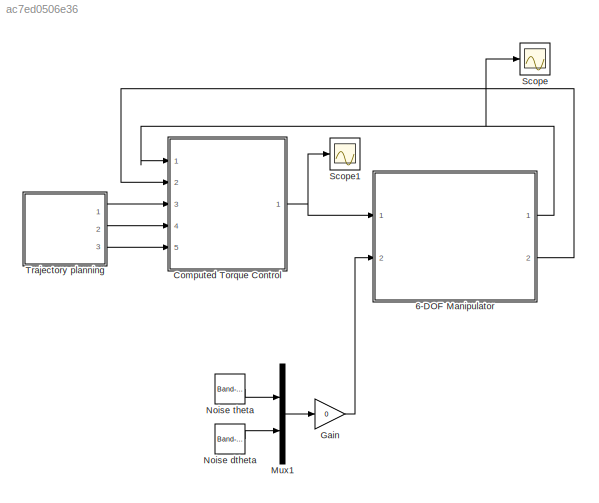
MODEL slx_ac7ed0506e36
KIND model
CONFIG AbsTol = auto
CONFIG EnableMultiTasking = off
CONFIG FixedStep = 0.01
CONFIG MaxStep = auto
CONFIG MinStep = auto
CONFIG RelTol = 1e-3
CONFIG SampleTimeConstraint = Unconstrained
CONFIG SolverName = FixedStepAuto
CONFIG StartTime = 0.0
CONFIG StopTime = 30
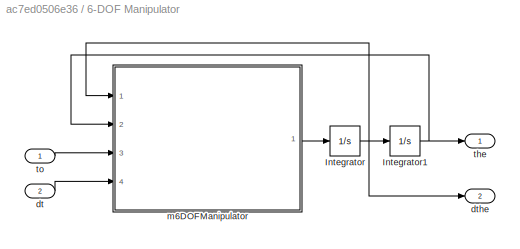
BLOCK [SubSystem] 6-DOF Manipulator
  Ports = [2, 2]
  RequestExecContextInheritance = off
BLOCK [Integrator] 6-DOF Manipulator/Integrator
  InitialCondition = [0;0;0;0;0;0]
  Ports = [1, 1]
BLOCK [Integrator] 6-DOF Manipulator/Integrator1
  InitialCondition = [0.01;0.01;0.01;0.01;0.01;0.01]
  Ports = [1, 1]
BLOCK [Inport] 6-DOF Manipulator/dt
  Port = 2
BLOCK [Outport] 6-DOF Manipulator/dthe
  Port = 2
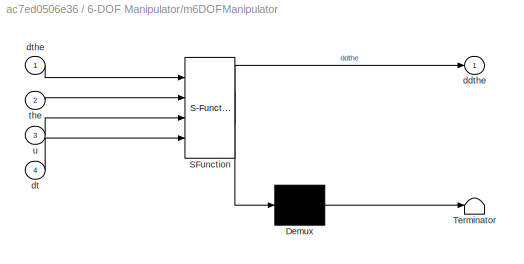
BLOCK [SubSystem] 6-DOF Manipulator/m6DOFManipulator
  ErrorFcn = Stateflow.Translate.translate
  PermitHierarchicalResolution = ExplicitOnly
  Ports = [4, 1]
  RequestExecContextInheritance = off
  SFBlockType = MATLAB Function
  TreatAsAtomicUnit = on
BLOCK [Demux] 6-DOF Manipulator/m6DOFManipulator/ Demux 
  Outputs = 1
  Ports = [1, 1]
BLOCK [S-Function] 6-DOF Manipulator/m6DOFManipulator/ SFunction 
  EnableBusSupport = on
  FunctionName = sf_sfun
  PortCounts = [4 2]
  Ports = [4, 2]
  SFcnIsStateOwnerBlock = off
  SFunctionDeploymentMode = off
  Tag = Stateflow S-Function 2
BLOCK [Terminator] 6-DOF Manipulator/m6DOFManipulator/ Terminator 
BLOCK [Outport] 6-DOF Manipulator/m6DOFManipulator/ddthe
BLOCK [Inport] 6-DOF Manipulator/m6DOFManipulator/dt
  Port = 4
BLOCK [Inport] 6-DOF Manipulator/m6DOFManipulator/dthe
BLOCK [Inport] 6-DOF Manipulator/m6DOFManipulator/the
  Port = 2
BLOCK [Inport] 6-DOF Manipulator/m6DOFManipulator/u
  Port = 3
BLOCK [Outport] 6-DOF Manipulator/the
BLOCK [Inport] 6-DOF Manipulator/to
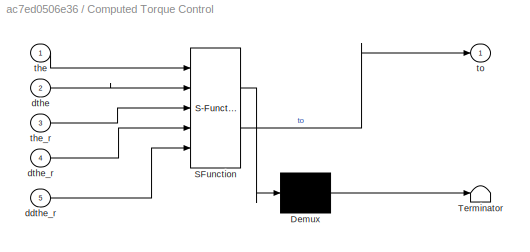
BLOCK [SubSystem] Computed Torque Control
  ErrorFcn = Stateflow.Translate.translate
  PermitHierarchicalResolution = ExplicitOnly
  Ports = [5, 1]
  RequestExecContextInheritance = off
  SFBlockType = MATLAB Function
  TreatAsAtomicUnit = on
BLOCK [Demux] Computed Torque Control/ Demux 
  Outputs = 1
  Ports = [1, 1]
BLOCK [S-Function] Computed Torque Control/ SFunction 
  EnableBusSupport = on
  FunctionName = sf_sfun
  PortCounts = [5 2]
  Ports = [5, 2]
  SFcnIsStateOwnerBlock = off
  SFunctionDeploymentMode = off
  Tag = Stateflow S-Function 1
BLOCK [Terminator] Computed Torque Control/ Terminator 
BLOCK [Inport] Computed Torque Control/ddthe_r
  Port = 5
BLOCK [Inport] Computed Torque Control/dthe
  Port = 2
BLOCK [Inport] Computed Torque Control/dthe_r
  Port = 4
BLOCK [Inport] Computed Torque Control/the
BLOCK [Inport] Computed Torque Control/the_r
  Port = 3
BLOCK [Outport] Computed Torque Control/to
BLOCK [Gain] Gain
  Gain = 0
BLOCK [Mux] Mux1
  DisplayOption = bar
  Inputs = 2
  Ports = [2, 1]
BLOCK [Reference] Noise dtheta  REF=simulink/Sources/Band-Limited
White Noise
  Ports = [0, 1]
  SourceBlock = simulink/Sources/Band-Limited\nWhite Noise
  SourceProductBaseCode = SL
  SourceType = Band-Limited White Noise.
BLOCK [Reference] Noise theta  REF=simulink/Sources/Band-Limited
White Noise
  Ports = [0, 1]
  SourceBlock = simulink/Sources/Band-Limited\nWhite Noise
  SourceProductBaseCode = SL
  SourceType = Band-Limited White Noise.
BLOCK [Scope] Scope
  Floating = off
  NumInputPorts = 1
  Ports = [1]
  ScopeSpecificationString = Simulink.scopes.TimeScopeBlockCfg('CurrentConfiguration', extmgr.ConfigurationSet(extmgr.Configuration('Core','General UI',true),extmgr.Configuration('Core','Source UI',true),extmgr.Configuration('Sources','WiredSimulink',true),extmgr.Configuration('Visuals','Time Domain',true,'SerializedDisplays',{struct('MinYLimReal','-1.35177','MaxYLimReal','1.31763','YLabelReal','','MinYLimMag','0.00000','MaxY...<+1488ch>
BLOCK [Scope] Scope1
  Floating = off
  NumInputPorts = 1
  Ports = [1]
  ScopeSpecificationString = Simulink.scopes.TimeScopeBlockCfg('CurrentConfiguration', extmgr.ConfigurationSet(extmgr.Configuration('Core','General UI',true),extmgr.Configuration('Core','Source UI',true),extmgr.Configuration('Sources','WiredSimulink',true,'DataLoggingVariableName','ScopeData1'),extmgr.Configuration('Visuals','Time Domain',true,'SerializedDisplays',{struct('MinYLimReal','-95.53191','MaxYLimReal','651.89769','Y...<+1586ch>
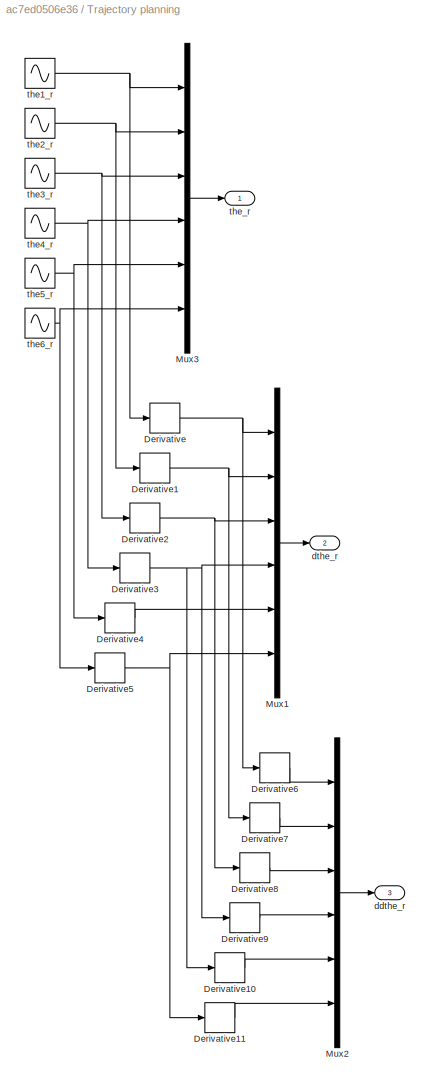
BLOCK [SubSystem] Trajectory planning
  Ports = [0, 3]
  RequestExecContextInheritance = off
BLOCK [Derivative] Trajectory planning/Derivative
BLOCK [Derivative] Trajectory planning/Derivative1
BLOCK [Derivative] Trajectory planning/Derivative10
BLOCK [Derivative] Trajectory planning/Derivative11
BLOCK [Derivative] Trajectory planning/Derivative2
BLOCK [Derivative] Trajectory planning/Derivative3
BLOCK [Derivative] Trajectory planning/Derivative4
BLOCK [Derivative] Trajectory planning/Derivative5
BLOCK [Derivative] Trajectory planning/Derivative6
BLOCK [Derivative] Trajectory planning/Derivative7
BLOCK [Derivative] Trajectory planning/Derivative8
BLOCK [Derivative] Trajectory planning/Derivative9
BLOCK [Mux] Trajectory planning/Mux1
  DisplayOption = bar
  Inputs = 6
  Ports = [6, 1]
BLOCK [Mux] Trajectory planning/Mux2
  DisplayOption = bar
  Inputs = 6
  Ports = [6, 1]
BLOCK [Mux] Trajectory planning/Mux3
  DisplayOption = bar
  Inputs = 6
  Ports = [6, 1]
BLOCK [Outport] Trajectory planning/ddthe_r
  Port = 3
  VectorParamsAs1DForOutWhenUnconnected = off
BLOCK [Outport] Trajectory planning/dthe_r
  Port = 2
  VectorParamsAs1DForOutWhenUnconnected = off
BLOCK [Sin] Trajectory planning/the1_r
  Amplitude = pi/3
  Frequency = 2*pi*0.1
  Ports = [0, 1]
  SampleTime = 0
BLOCK [Sin] Trajectory planning/the2_r
  Amplitude = pi/4
  Frequency = 2*pi*0.1
  Ports = [0, 1]
  SampleTime = 0
BLOCK [Sin] Trajectory planning/the3_r
  Amplitude = pi/6
  Frequency = 2*pi*0.1
  Ports = [0, 1]
  SampleTime = 0
BLOCK [Sin] Trajectory planning/the4_r
  Amplitude = pi/3
  Frequency = 2*pi*0.1
  Phase = pi/3
  Ports = [0, 1]
  SampleTime = 0
BLOCK [Sin] Trajectory planning/the5_r
  Amplitude = pi/4
  Frequency = 2*pi*0.1
  Phase = pi/4
  Ports = [0, 1]
  SampleTime = 0
BLOCK [Sin] Trajectory planning/the6_r
  Amplitude = pi/6
  Frequency = 2*pi*0.1
  Phase = pi/6
  Ports = [0, 1]
  SampleTime = 0
BLOCK [Outport] Trajectory planning/the_r
  VectorParamsAs1DForOutWhenUnconnected = off
NET 6-DOF Manipulator/Integrator1:1 -> 6-DOF Manipulator/m6DOFManipulator:2, 6-DOF Manipulator/the:1
NET 6-DOF Manipulator/Integrator:1 -> 6-DOF Manipulator/Integrator1:1, 6-DOF Manipulator/dthe:1, 6-DOF Manipulator/m6DOFManipulator:1
LINE 6-DOF Manipulator/dt:1 -> 6-DOF Manipulator/m6DOFManipulator:4
LINE 6-DOF Manipulator/m6DOFManipulator:1 -> 6-DOF Manipulator/Integrator:1
LINE 6-DOF Manipulator/to:1 -> 6-DOF Manipulator/m6DOFManipulator:3
NET 6-DOF Manipulator:1 -> Computed Torque Control:1, Scope:1
LINE 6-DOF Manipulator:2 -> Computed Torque Control:2
NET Computed Torque Control:1 -> 6-DOF Manipulator:1, Scope1:1
LINE Gain:1 -> 6-DOF Manipulator:2
LINE Mux1:1 -> Gain:1
LINE Noise dtheta:1 -> Mux1:2
LINE Noise theta:1 -> Mux1:1
LINE Trajectory planning/Derivative10:1 -> Trajectory planning/Mux2:5
LINE Trajectory planning/Derivative11:1 -> Trajectory planning/Mux2:6
NET Trajectory planning/Derivative1:1 -> Trajectory planning/Derivative7:1, Trajectory planning/Mux1:2
NET Trajectory planning/Derivative2:1 -> Trajectory planning/Derivative8:1, Trajectory planning/Mux1:3
NET Trajectory planning/Derivative3:1 -> Trajectory planning/Derivative10:1, Trajectory planning/Derivative9:1, Trajectory planning/Mux1:4
LINE Trajectory planning/Derivative4:1 -> Trajectory planning/Mux1:5
NET Trajectory planning/Derivative5:1 -> Trajectory planning/Derivative11:1, Trajectory planning/Mux1:6
LINE Trajectory planning/Derivative6:1 -> Trajectory planning/Mux2:1
LINE Trajectory planning/Derivative7:1 -> Trajectory planning/Mux2:2
LINE Trajectory planning/Derivative8:1 -> Trajectory planning/Mux2:3
LINE Trajectory planning/Derivative9:1 -> Trajectory planning/Mux2:4
NET Trajectory planning/Derivative:1 -> Trajectory planning/Derivative6:1, Trajectory planning/Mux1:1
LINE Trajectory planning/Mux1:1 -> Trajectory planning/dthe_r:1
LINE Trajectory planning/Mux2:1 -> Trajectory planning/ddthe_r:1
LINE Trajectory planning/Mux3:1 -> Trajectory planning/the_r:1
NET Trajectory planning/the1_r:1 -> Trajectory planning/Derivative:1, Trajectory planning/Mux3:1
NET Trajectory planning/the2_r:1 -> Trajectory planning/Derivative1:1, Trajectory planning/Mux3:2
NET Trajectory planning/the3_r:1 -> Trajectory planning/Derivative2:1, Trajectory planning/Mux3:3
NET Trajectory planning/the4_r:1 -> Trajectory planning/Derivative3:1, Trajectory planning/Mux3:4
NET Trajectory planning/the5_r:1 -> Trajectory planning/Derivative4:1, Trajectory planning/Mux3:5
NET Trajectory planning/the6_r:1 -> Trajectory planning/Derivative5:1, Trajectory planning/Mux3:6
LINE Trajectory planning:1 -> Computed Torque Control:3
LINE Trajectory planning:2 -> Computed Torque Control:4
LINE Trajectory planning:3 -> Computed Torque Control:5
note: NET lines group one-source signal fan-out (src -> all destinations, sorted); 1:1 wires keep LINE
CHART Computed Torque Control states=1 transitions=1
  STATE_LABEL 'eML_blk_kernel()'
  STATE_LABEL 'SCRIPT:\nfunction to = CTC(the,dthe,the_r,dthe_r,ddthe_r)\n%% Declare manipulator dynamics:\nm1=0.1; m2=0.1; m3=0.1; m4=0.1; m5=0.1; m6=0.1;\nI1=0; I2=0; I3=0; I4=0; I5=0; I6=1;\na1=0.75; a2=2.70; a3=0.90; d1=3.35; d4=2.95; d7=0.80;\ng=9.81;\n%%\ne1 = the(1); e2 = the(2); e3 = the(3);\ne4 = the(4); e5 = the(5); e6 = the(6);\nde1 = dthe(1); de2 = dthe(2); de3 = dthe(3);\nde4 = dthe(4); de5 = dthe(5); de6 = dt...<+3608ch>'
CHART 6-DOF Manipulator/m6DOFManipulator states=1 transitions=1
  STATE_LABEL 'eML_blk_kernel()'
  STATE_LABEL 'SCRIPT:\nfunction ddthe  = m6DOFManipulator(dthe,the,u,dt)\n%% Declare:\nm1=0.1; m2=0.1; m3=0.1; m4=0.1; m5=0.1; m6=0.1;\nI1=0; I2=0; I3=0; I4=0; I5=0; I6=1;\na1=0.75; a2=2.70; a3=0.90; d1=3.35; d4=2.95; d7=0.80;\ng=9.81;\n%%\ne1 = the(1) + dt(1); e2 = the(2) + dt(1); e3 = the(3) + dt(1);\ne4 = the(4) + dt(1); e5 = the(5) + dt(1); e6 = the(6) + dt(1);\nde1 = dthe(1) + dt(2); de2 = dthe(2) + dt(2); de3 = dth...<+3608ch>'
CHART  states=0 transitions=0
CHART  states=0 transitions=0
